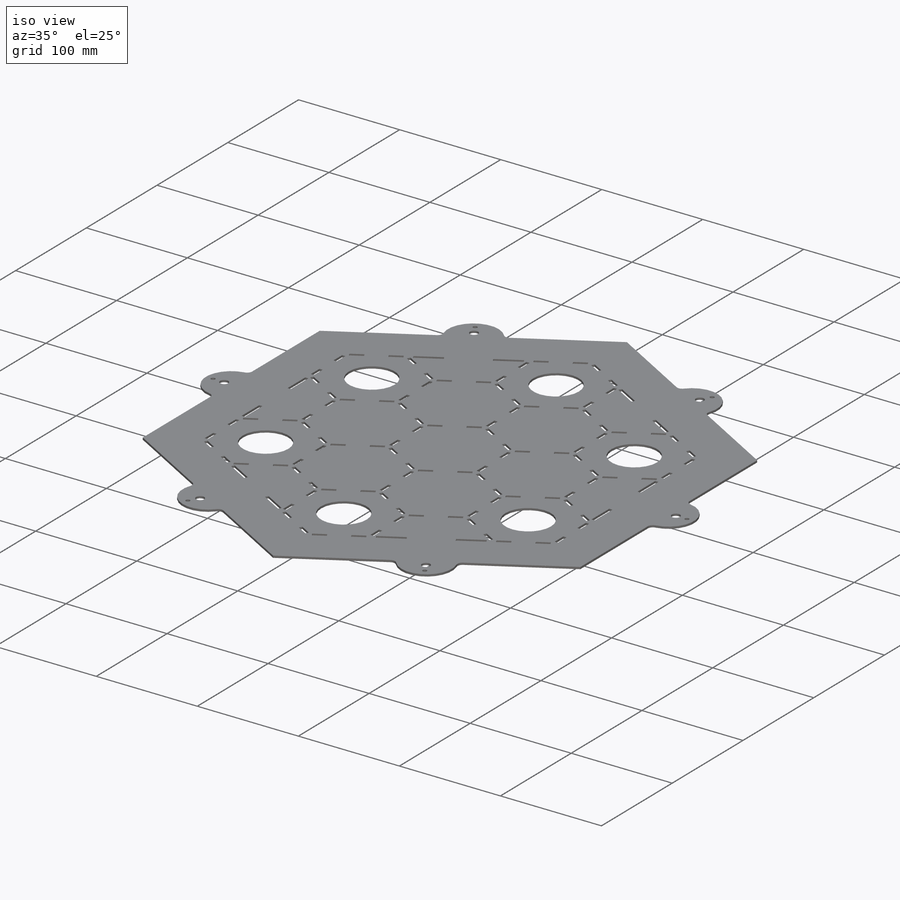
[diagram: iso view]
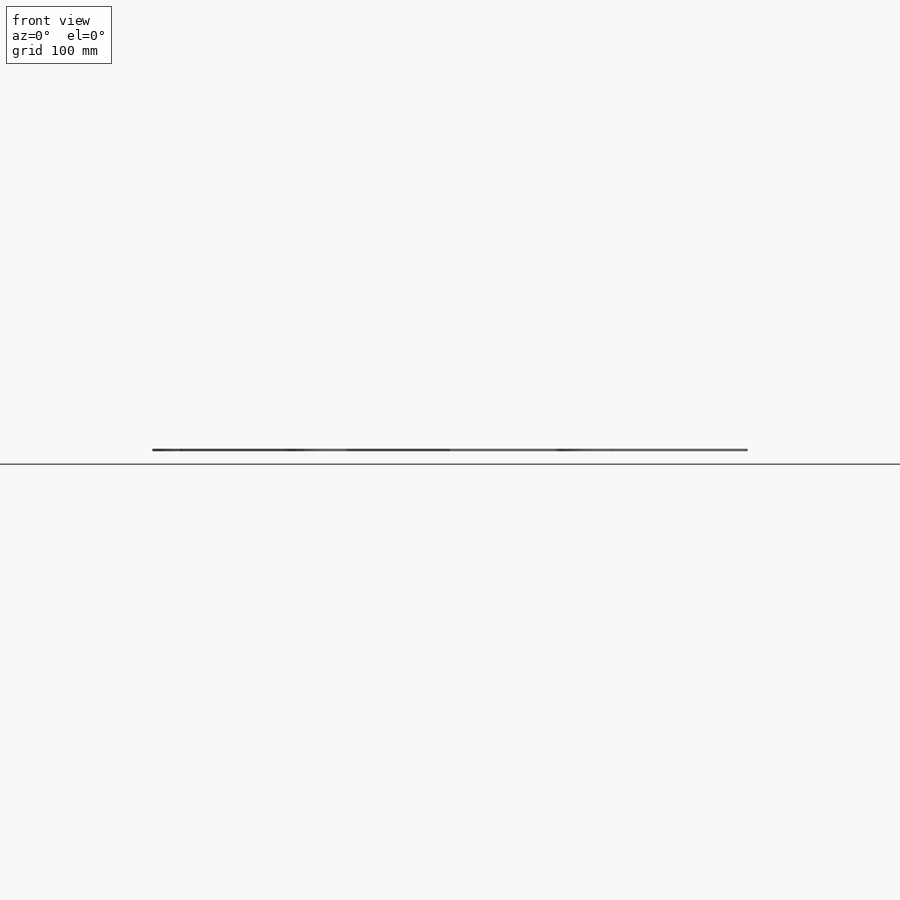
[diagram: front view]
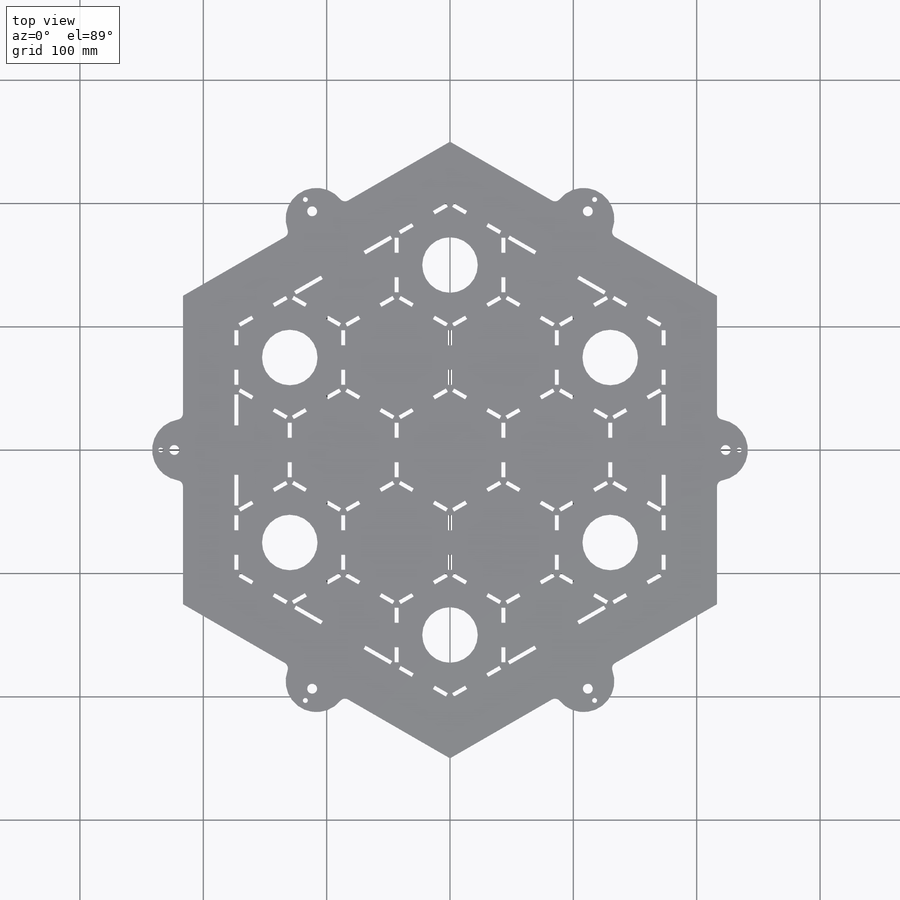
[diagram: top view]
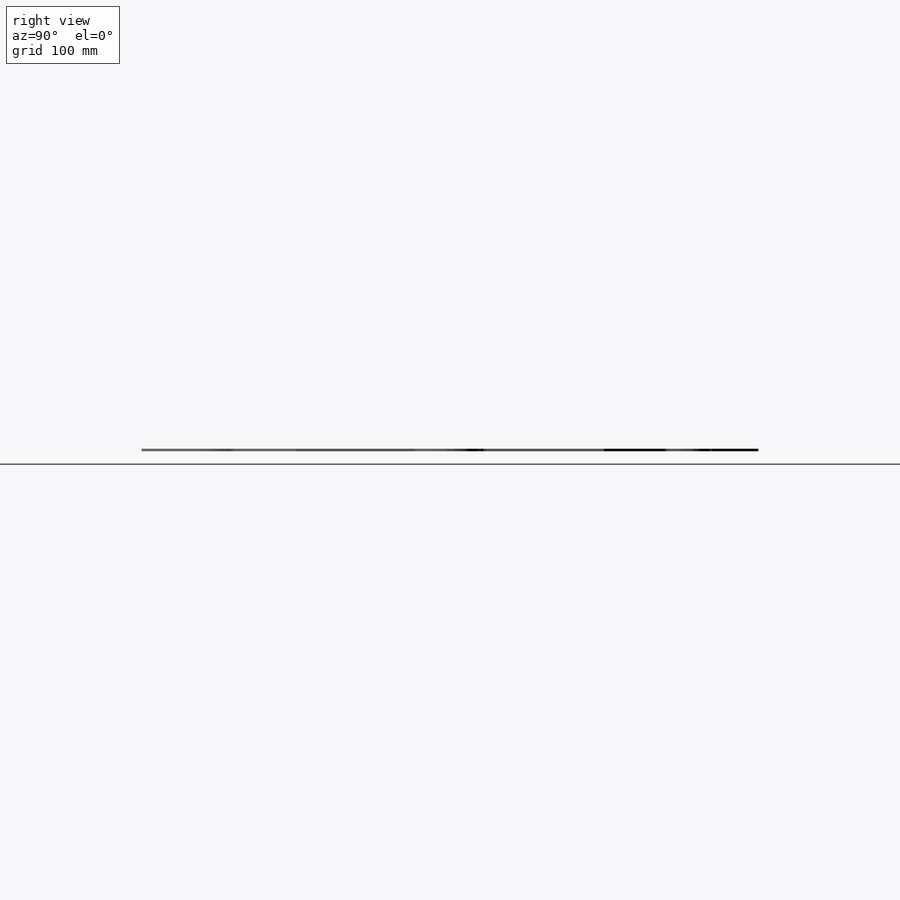
[diagram: right view]
SOLIDWORKS PART (.sldprt)
format: sldprt  version: not decoded by parser v0  size: 1,359,872 bytes
history: native  units: mm
features: plane x3, sketch x3, cut_extrude x2, material x1, extrude x1 (+10 scaffold rows collapsed)
feature tree (20):
  scaffold x10  (default folders/planes/origin — collapsed)
  material  "材质 <未指定>"
  plane  "前视"
  plane  "上视"
  plane  "右视"
  sketch  "草图1"  dims[c1.D1=500.0mm c1.D4=5.0mm c1.D3=50.0mm c2.D1=5.0mm c2.D5=4.0mm c2.D7=8.0mm c2.D9=8.0mm c2.D2=250.0mm c2.D3=10.0mm c3.D5=~368.00186mm c3.D4=18.0mm c3.D6=7.0mm c3.D8=6.0]
  extrude  "凸台-拉伸1"  Depth=2mm
  sketch  "草图3"  dims[c1.D3=22.0mm c1.D4=22.0mm c1.D5=10.0mm c1.D6=10.0mm c1.D7=22.0mm c1.D8=22.0mm c1.D9=22.0mm c1.D10=10.0mm c2.D4=12.0mm c2.D3=20.0mm c2.D5=20.0mm c2.D6=20.0mm c2.D7=25.0mm c2.D8=25.0mm c2.D9=20.0mm c2.D10=25.0mm c2.D11=25.0mm c2.D12=25.0mm c2.D13=25.0mm c2.D14=40.0mm c2.D15=20.0mm c2.D16=25.0mm c2.D1=1.5mm c2.D2=1.5mm c3.D3=0.1mm]
  cut_extrude  "切除-拉伸1"  [1 undecoded]
  sketch  "草图4"  dims[c1.D1=13.0mm c1.D2=0.0mm c1.D3=0.0mm c2.D1=83.6mm]
  cut_extrude  "切除-拉伸2"  Depth=0.5mm
decode coverage: 5 of 6 modeling features carry decoded parameters
note: ~ marks probable driven/reference dimensions
note: 1 parameter value undecoded
note: suppression state not decoded; provenance and decode notes live in map.json
